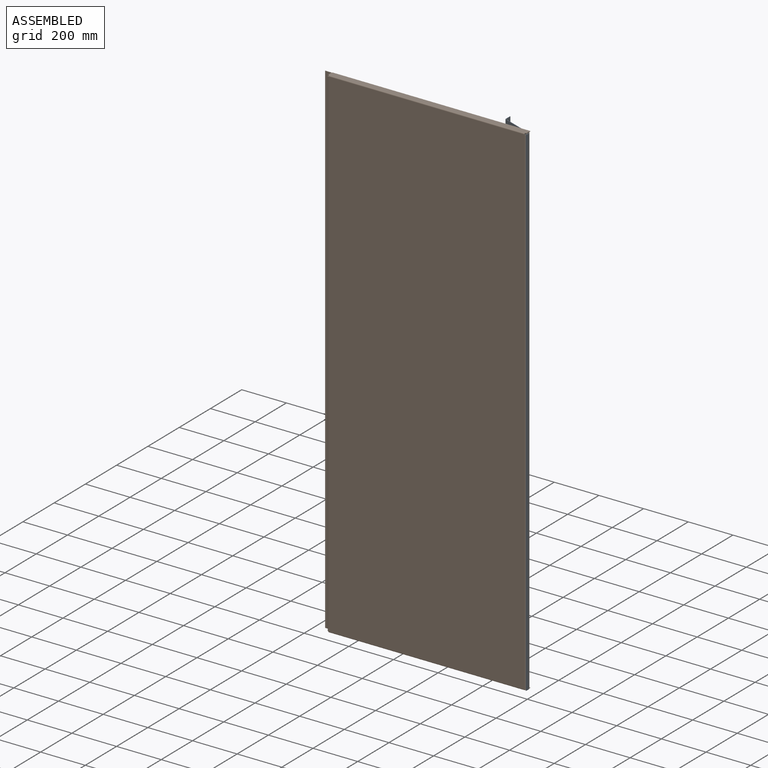
[diagram: assembled view]
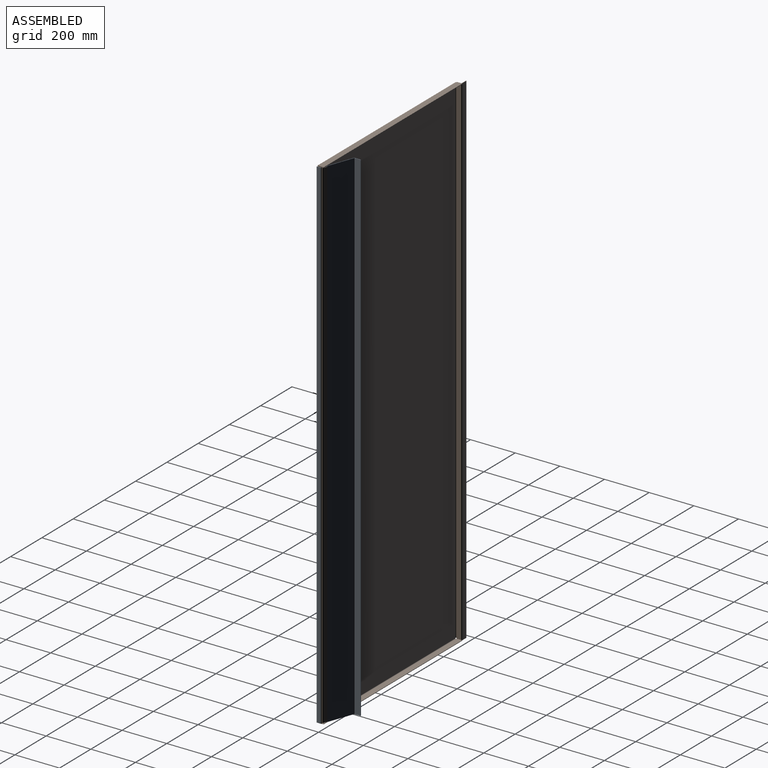
[diagram: assembled view, second angle]
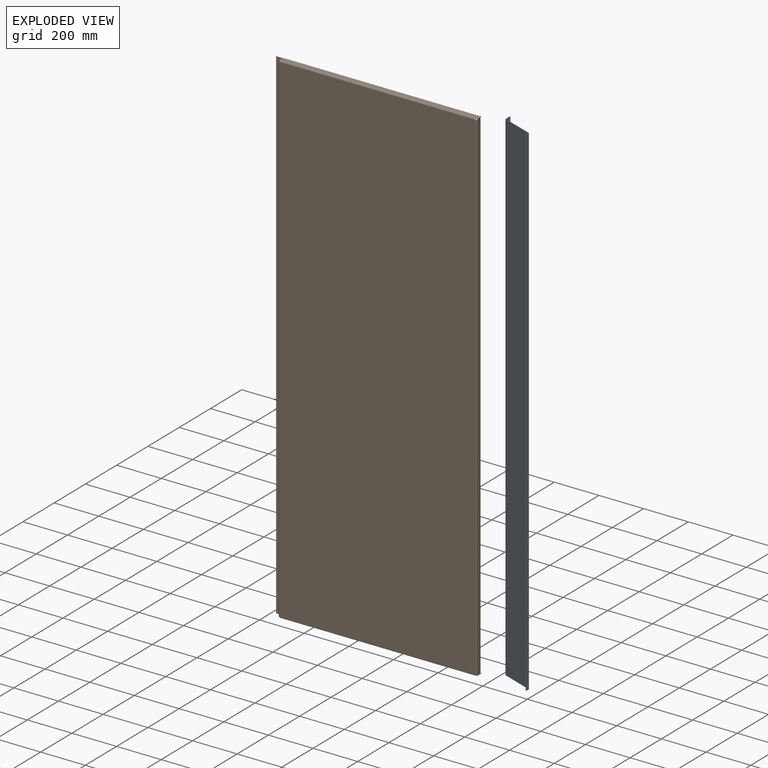
[diagram: exploded view]
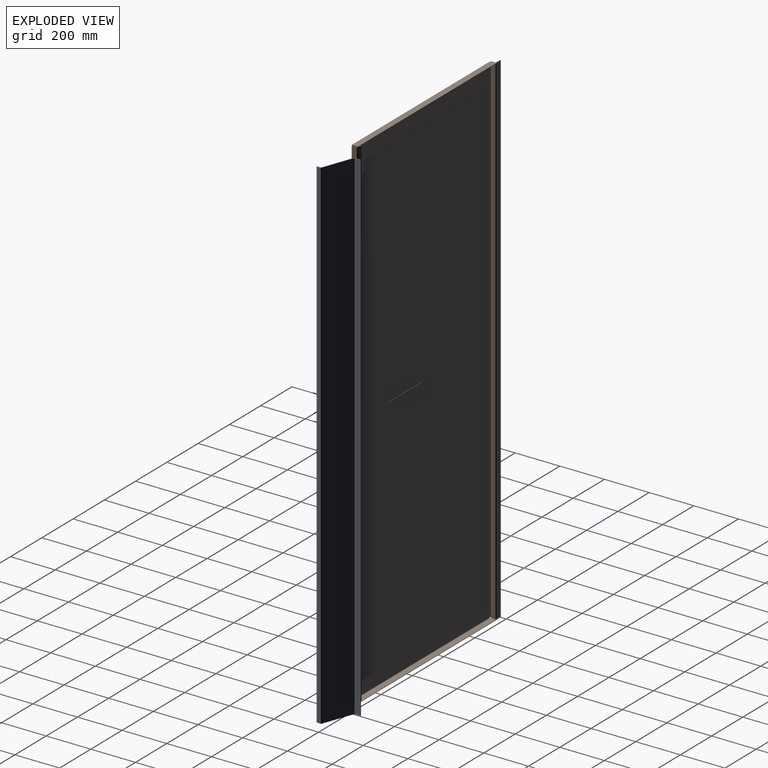
[diagram: exploded view, second angle]
ASSEMBLY  parts=2 mates=2
PART A: 22 faces, bbox 167.1x46.4x2251 mm
  f0: plane 144.4x2mm, normal (0,0,-1), area 288.8mm2, adj f2,f3,f10,f18
  f1: plane 144.4x2mm, normal (0,0,1), area 288.8mm2, adj f2,f3,f9,f19
  f2: plane 2251x144.4mm, normal (0,1,0), area 325040.7mm2, adj f0,f1,f11,f21
  f3: plane 2251x144.4mm, normal (0,-1,0), area 325040.7mm2, adj f0,f1,f12,f20
  f4: plane 2251x1.88mm, normal (0.34,-0.94,0), area 4502mm2, adj f5,f6,f7,f8
  f5: plane 16.85x7.76mm, normal (0,0,-1), area 34.4mm2, adj f4,f7,f8,f10
  f6: plane 16.85x7.76mm, normal (0,0,1), area 34.4mm2, adj f4,f7,f8,f9
  f7: plane 2251x16.16mm, normal (0.94,0.34,0), area 38715.3mm2, adj f4,f5,f6,f11
  f8: plane 2251x16.16mm, normal (-0.94,-0.34,0), area 38715.3mm2, adj f4,f5,f6,f12
  f9: plane 3.76x3.32mm, normal (0,0,1), area 7.3mm2, adj f1,f6,f11,f12
  f10: plane 3.76x3.32mm, normal (0,0,-1), area 7.3mm2, adj f0,f5,f11,f12
  f11: cylinder r=4mm len=2251mm, axis (0,0,1), area 11000.5mm2, adj f2,f7,f9,f10
  f12: cylinder r=2mm len=2251mm, axis (0,0,1), area 5500.2mm2, adj f3,f8,f9,f10
  f13: plane 2251x1.88mm, normal (-0.34,0.94,0), area 4502mm2, adj f14,f15,f16,f17
  f14: plane 26.24x11.18mm, normal (0,0,1), area 54.4mm2, adj f13,f16,f17,f19
  f15: plane 26.24x11.18mm, normal (0,0,-1), area 54.4mm2, adj f13,f16,f17,f18
  f16: plane 2251x25.56mm, normal (0.94,0.34,0), area 61225.3mm2, adj f13,f14,f15,f21
  f17: plane 2251x25.56mm, normal (-0.94,-0.34,0), area 61225.3mm2, adj f13,f14,f15,f20
  f18: plane 3.76x3.32mm, normal (0,0,-1), area 7.3mm2, adj f0,f15,f20,f21
  f19: plane 3.76x3.32mm, normal (0,0,1), area 7.3mm2, adj f1,f14,f20,f21
  f20: cylinder r=4mm len=2251mm, axis (0,0,-1), area 11000.5mm2, adj f3,f17,f18,f19
  f21: cylinder r=2mm len=2251mm, axis (0,0,-1), area 5500.2mm2, adj f2,f16,f18,f19
PART B: 80 faces, bbox 916x32.8x2255 mm
  f0: plane 886x26mm, normal (0,0,1), area 22994.6mm2, adj f11,f12,f14,f15,f16,f17,f18,f22
  f1: plane 2247x880mm, normal (0,1,0), area 1977354.8mm2, adj f3,f4,f5,f6,f7,f8,f9,f10
  f2: plane 2247x880mm, normal (0,-1,0), area 1977354.8mm2, adj f3,f4,f5,f6,f7,f8,f9,f10
  f3: plane 2x1.14mm, normal (0,0,1), area 2.3mm2, adj f1,f2,f4,f51
  f4: plane 2x1.14mm, normal (1,0,0), area 2.3mm2, adj f1,f2,f3,f32
  f5: plane 2x1.14mm, normal (1,0,0), area 2.3mm2, adj f1,f2,f6,f20
  f6: plane 2x1.14mm, normal (0,0,-1), area 2.3mm2, adj f1,f2,f5,f50
  f7: plane 2x1.14mm, normal (0,0,-1), area 2.3mm2, adj f1,f2,f8,f71
  f8: plane 2x1.14mm, normal (-1,0,0), area 2.3mm2, adj f1,f2,f7,f19
  f9: plane 2x1.14mm, normal (-1,0,0), area 2.3mm2, adj f1,f2,f10,f33
  f10: plane 2x1.14mm, normal (0,0,1), area 2.3mm2, adj f1,f2,f9,f72
  f11: plane 6x2mm, normal (-1,0,0), area 12mm2, adj f0,f13,f14,f69
  f12: plane 24.86x2mm, normal (1,0,0), area 49.7mm2, adj f0,f13,f14,f18,f37
  f13: plane 886x26mm, normal (0,0,-1), area 23026.6mm2, adj f11,f12,f14,f15,f16,f17,f18,f21
  f14: plane 886x2mm, normal (0,1,0), area 1772mm2, adj f0,f11,f12,f13
  f15: plane 2x1.14mm, normal (-1,0,0), area 2.3mm2, adj f0,f13,f16,f19
  f16: plane 3.14x2mm, normal (0,-1,0), area 6.3mm2, adj f0,f13,f15,f66
  f17: plane 2x1.14mm, normal (1,0,0), area 2.3mm2, adj f0,f13,f18,f20
  f18: plane 5.14x2mm, normal (0,-1,0), area 10.3mm2, adj f0,f12,f13,f17,f45
  f19: plane 4x4mm, normal (-1,0,0), area 9.4mm2, adj f8,f15,f21,f22
  f20: plane 4x4mm, normal (1,0,0), area 9.4mm2, adj f5,f17,f21,f22
  f21: cylinder r=4mm len=877.72mm, axis (-1,0,0), area 5514.9mm2, adj f2,f13,f19,f20
  f22: cylinder r=2mm len=877.72mm, axis (-1,0,0), area 2757.4mm2, adj f0,f1,f19,f20
  f23: plane 24.86x2mm, normal (1,0,0), area 49.7mm2, adj f25,f26,f27,f29,f37
  f24: plane 6x2mm, normal (-1,0,0), area 12mm2, adj f25,f26,f27,f69
  f25: plane 886x26mm, normal (0,0,1), area 23026.6mm2, adj f23,f24,f26,f28,f29,f30,f31,f34
  f26: plane 886x2mm, normal (0,1,0), area 1772mm2, adj f23,f24,f25,f27
  f27: plane 886x26mm, normal (0,0,-1), area 22994.6mm2, adj f23,f24,f26,f28,f29,f30,f31,f35
  f28: plane 2x1.14mm, normal (1,0,0), area 2.3mm2, adj f25,f27,f29,f32
  f29: plane 5.14x2mm, normal (0,-1,0), area 10.3mm2, adj f23,f25,f27,f28,f39
  f30: plane 2x1.14mm, normal (-1,0,0), area 2.3mm2, adj f25,f27,f31,f33
  f31: plane 3.14x2mm, normal (0,-1,0), area 6.3mm2, adj f25,f27,f30,f64
  f32: plane 4x4mm, normal (1,0,0), area 9.4mm2, adj f4,f28,f34,f35
  f33: plane 4x4mm, normal (-1,0,0), area 9.4mm2, adj f9,f30,f34,f35
  f34: cylinder r=4mm len=877.72mm, axis (1,0,0), area 5514.9mm2, adj f2,f25,f32,f33
  f35: cylinder r=2mm len=877.72mm, axis (1,0,0), area 2757.4mm2, adj f1,f27,f32,f33
  f36: plane 2251x19.2mm, normal (-1,0,0), area 43201.9mm2, adj f0,f27,f38,f39,f40,f41,f42,f43
  f37: plane 2251x19.2mm, normal (1,0,0), area 43201.9mm2, adj f12,f23,f38,f39,f40,f41,f42,f43
  f38: plane 2x1.14mm, normal (0,0,1), area 2.3mm2, adj f36,f37,f39,f51
  f39: plane 3.14x2mm, normal (0,-1,0), area 6.3mm2, adj f29,f36,f37,f38
  f40: plane 2x2mm, normal (0,1,0), area 4mm2, adj f27,f36,f37,f41
  f41: plane 2.06x2mm, normal (0,0,1), area 4.1mm2, adj f36,f37,f40,f46
  f42: plane 2x2mm, normal (0,1,0), area 4mm2, adj f0,f36,f37,f43
  f43: plane 2.06x2mm, normal (0,0,-1), area 4.1mm2, adj f36,f37,f42,f47
  f44: plane 2x1.14mm, normal (0,0,-1), area 2.3mm2, adj f36,f37,f45,f50
  f45: plane 3.14x2mm, normal (0,-1,0), area 6.3mm2, adj f18,f36,f37,f44
  f46: plane 3.76x3.32mm, normal (0,0,1), area 7.3mm2, adj f41,f48,f49,f56
  f47: plane 3.76x3.32mm, normal (0,0,-1), area 7.3mm2, adj f43,f48,f49,f55
  f48: cylinder r=4mm len=2247mm, axis (0,0,1), area 10980.9mm2, adj f37,f46,f47,f58
  f49: cylinder r=2mm len=2247mm, axis (0,0,1), area 5490.5mm2, adj f36,f46,f47,f57
  f50: plane 4x4mm, normal (0,0,-1), area 9.4mm2, adj f6,f44,f52,f53
  f51: plane 4x4mm, normal (0,0,1), area 9.4mm2, adj f3,f38,f52,f53
  f52: cylinder r=4mm len=2244.72mm, axis (0,0,-1), area 14104mm2, adj f2,f37,f50,f51
  f53: cylinder r=2mm len=2244.72mm, axis (0,0,-1), area 7052mm2, adj f1,f36,f50,f51
  f54: plane 2247x1.88mm, normal (-0.94,0.34,0), area 4494mm2, adj f55,f56,f57,f58
  f55: plane 16.85x7.76mm, normal (0,0,-1), area 34.4mm2, adj f47,f54,f57,f58
  f56: plane 16.85x7.76mm, normal (0,0,1), area 34.4mm2, adj f46,f54,f57,f58
  f57: plane 2247x16.16mm, normal (-0.34,-0.94,0), area 38646.5mm2, adj f49,f54,f55,f56
  f58: plane 2247x16.16mm, normal (0.34,0.94,0), area 38646.5mm2, adj f48,f54,f55,f56
  f59: plane 18.86x2mm, normal (0,0,1), area 37.7mm2, adj f25,f61,f64,f67
  f60: plane 18.86x2mm, normal (0,0,-1), area 37.7mm2, adj f13,f61,f66,f68
  f61: plane 2255x20mm, normal (-1,0,0), area 45088.3mm2, adj f59,f60,f63,f64,f65,f66,f70,f73
  f62: plane 2251x20mm, normal (1,0,0), area 45012.9mm2, adj f0,f27,f63,f64,f65,f66,f69,f74
  f63: plane 2x1.14mm, normal (0,0,1), area 2.3mm2, adj f61,f62,f64,f72
  f64: plane 5.14x2mm, normal (0,-1,0), area 10.3mm2, adj f31,f59,f61,f62,f63
  f65: plane 2x1.14mm, normal (0,0,-1), area 2.3mm2, adj f61,f62,f66,f71
  f66: plane 5.14x2mm, normal (0,-1,0), area 10.3mm2, adj f16,f60,f61,f62,f65
  f67: plane 4x4mm, normal (0,0,1), area 9.4mm2, adj f59,f69,f70,f76
  f68: plane 4x4mm, normal (0,0,-1), area 9.4mm2, adj f60,f69,f70,f77
  f69: cylinder r=4mm len=2255mm, axis (0,0,1), area 14168.6mm2, adj f11,f24,f62,f67,f68,f78
  f70: cylinder r=2mm len=2255mm, axis (0,0,1), area 7084.3mm2, adj f61,f67,f68,f79
  f71: plane 4x4mm, normal (0,0,-1), area 9.4mm2, adj f7,f65,f73,f74
  f72: plane 4x4mm, normal (0,0,1), area 9.4mm2, adj f10,f63,f73,f74
  f73: cylinder r=4mm len=2244.72mm, axis (0,0,-1), area 14104mm2, adj f2,f61,f71,f72
  f74: cylinder r=2mm len=2244.72mm, axis (0,0,-1), area 7052mm2, adj f1,f62,f71,f72
  f75: plane 2255x2mm, normal (-1,0,0), area 4510mm2, adj f76,f77,f78,f79
  f76: plane 26x2mm, normal (0,0,1), area 52mm2, adj f67,f75,f78,f79
  f77: plane 26x2mm, normal (0,0,-1), area 52mm2, adj f68,f75,f78,f79
  f78: plane 2255x26mm, normal (0,1,0), area 58630mm2, adj f69,f75,f76,f77
  f79: plane 2255x26mm, normal (0,-1,0), area 58630mm2, adj f70,f75,f76,f77
PLACE A rot(axis=(0,0,-1),20deg) t=(-63.25,34.42,144.48)mm
PLACE B t=(-452.31,-6.6,364.47)mm
MATE planar B.f37 <-> A.f8  axis (1,0,0) through (-2,5,1127.5)mm
MATE planar B.f2 <-> A.f4  axis (0,-1,0) through (-446,-8.6,1127.5)mm
